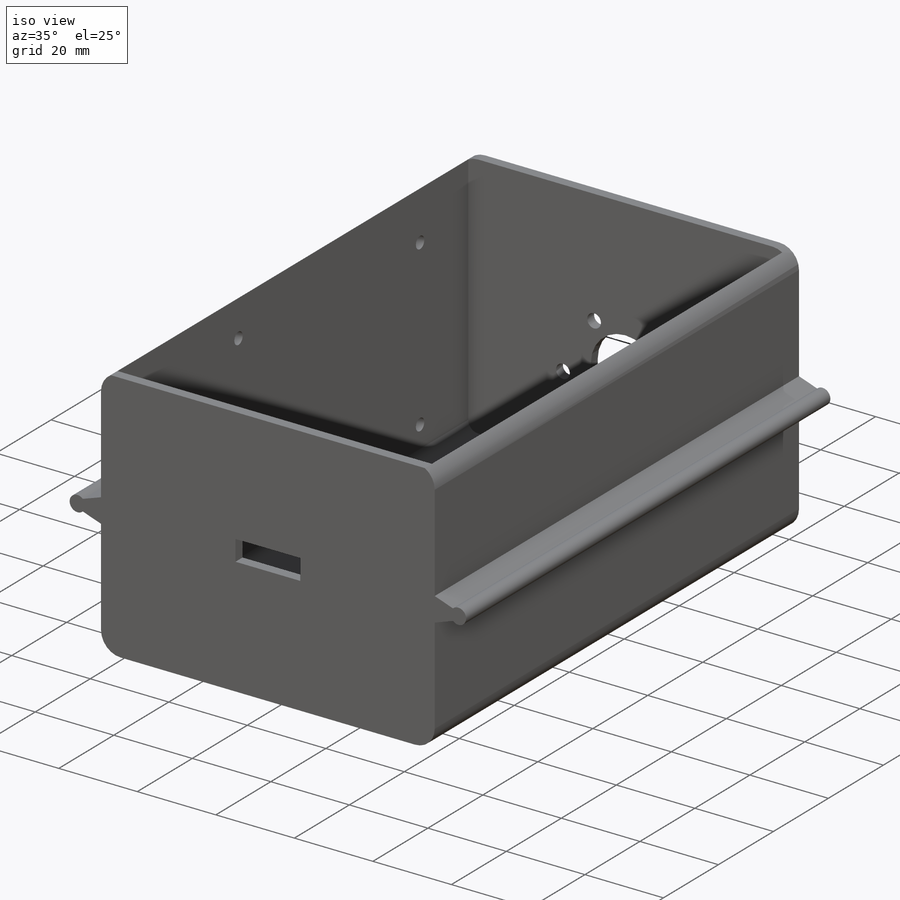
[diagram: iso view]
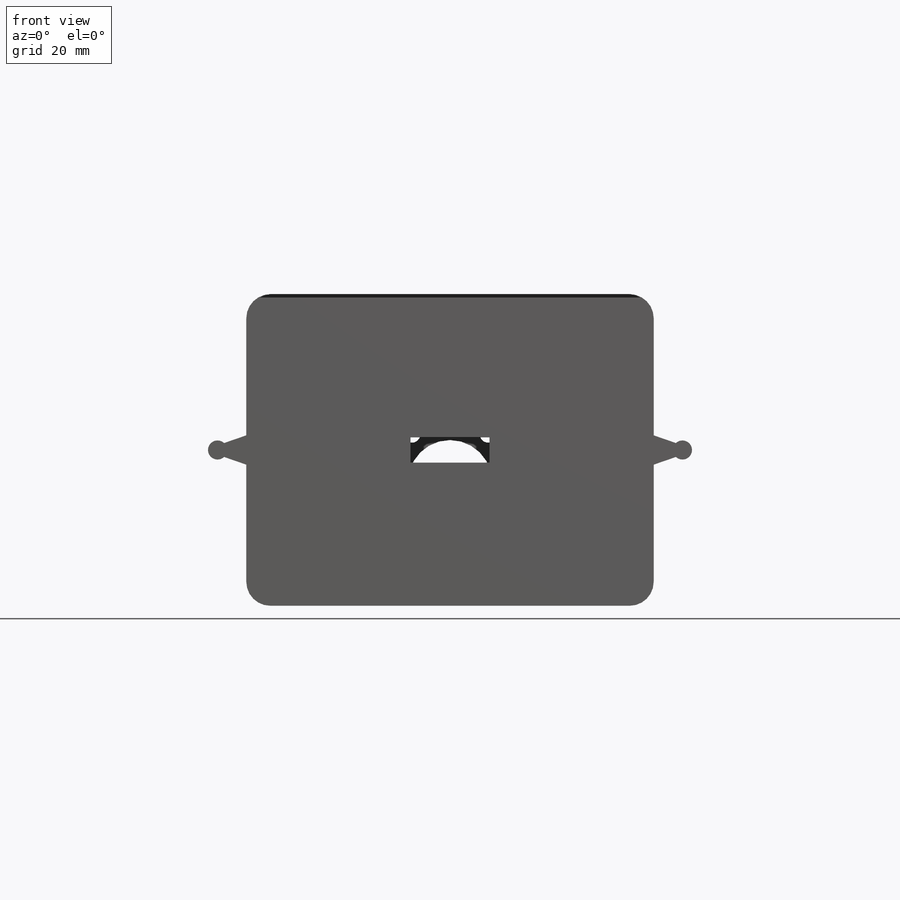
[diagram: front view]
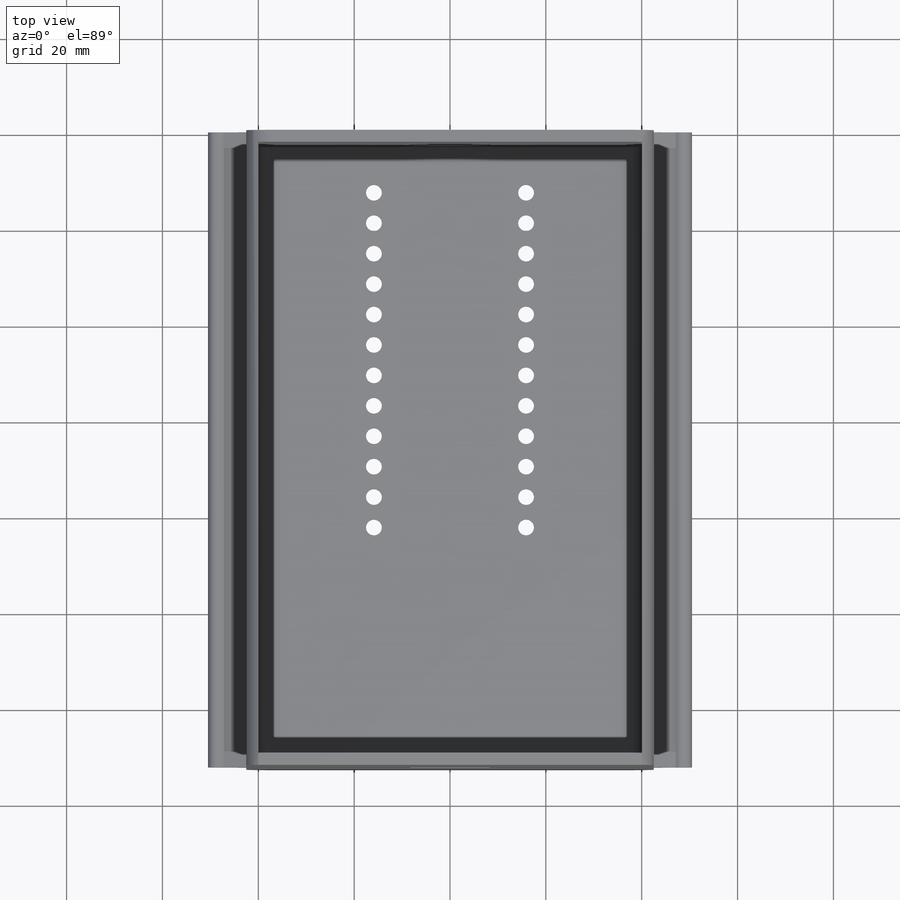
[diagram: top view]
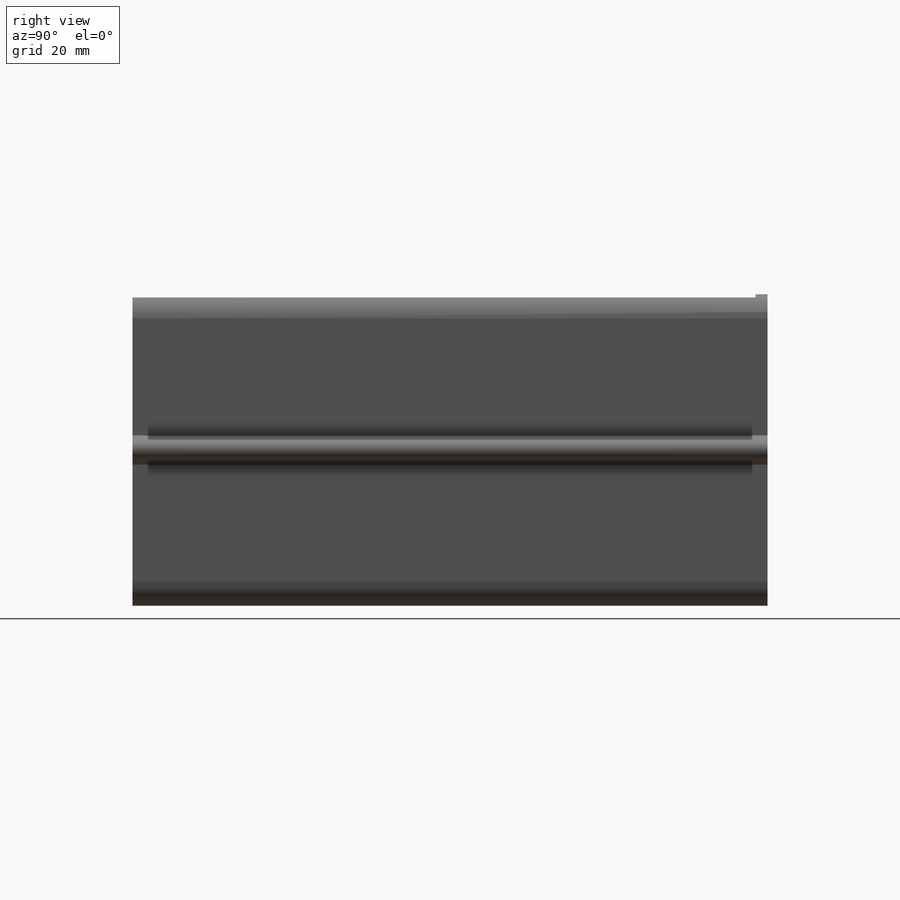
[diagram: right view]
SOLIDWORKS PART (.sldprt)
format: sldprt  version: not decoded by parser v0  size: 470,016 bytes
history: native  units: mm
features: sketch x10, extrude x3, cut_extrude x3, material x1, pattern_linear x1 + 1 further entry (+18 scaffold rows collapsed; 3 parser-record rows omitted)
feature tree (40):
  scaffold x18  (default folders/planes/origin — collapsed)
  material  "Material <not specified>"
  sketch  "Sketch1-Slide_Rail_Reference"  dims[D1=5.0mm 2=2.0mm D2=16.5mm D3=5.25mm D4=85.0mm D5=65.0mm D6=6.0mm]
  sketch  "Sketch2-Slide_Rail_Reference"  dims[D1=0.5mm]
  sketch  "Sketch3-Slide_Rail_Reference"  dims[D1=0.0mm D2=0.0mm]
  "Slide_Rail_Reference"
  parser-record x3  (decoder bookkeeping rows leaked as tree rows — omitted from the tree; the rows remain in map.json)
  sketch  "Sketch3"  dims[D2=2.5mm D3=2.5mm D4=2.5mm D1=0.0mm]
  extrude  "Boss-Extrude1"  Depth=130mm
  sketch  "Sketch4"  dims[D2=3.302mm D1=31.75mm D3=12.025mm]
  cut_extrude  "Cut-Extrude1"  [1 undecoded]
  pattern_linear  "LPattern1"  Count1=12 Count2=1 Spacing1=6.35mm Spacing2=10mm
  sketch  "Sketch5"  dims[D1=0.0mm]
  extrude  "Boss-Extrude2"  Depth=2.5mm
  sketch  "Sketch6"  dims[D1=6.35mm D2=31.75mm]
  sketch  "Sketch7"  dims[D1=3.5mm D2=22.0mm]
  cut_extrude  "Cut-Extrude5"  Depth=2.5mm
  sketch  "Sketch8"  dims[D1=0.0mm D2=0.0mm]
  extrude  "Boss-Extrude3"  Depth=2.5mm
  sketch  "Sketch10"  dims[c1.D3=3.048mm c1.D1=48.26mm c1.D2=41.91mm c2.D1=10.0mm c2.20=20.0mm]
  cut_extrude  "Cut-Extrude6"  [1 undecoded]
decode coverage: 15 of 17 modeling features carry decoded parameters; 1 rows unclassified (native names shown)
note: 2 parameter values undecoded
note: suppression state not decoded; provenance and decode notes live in map.json
